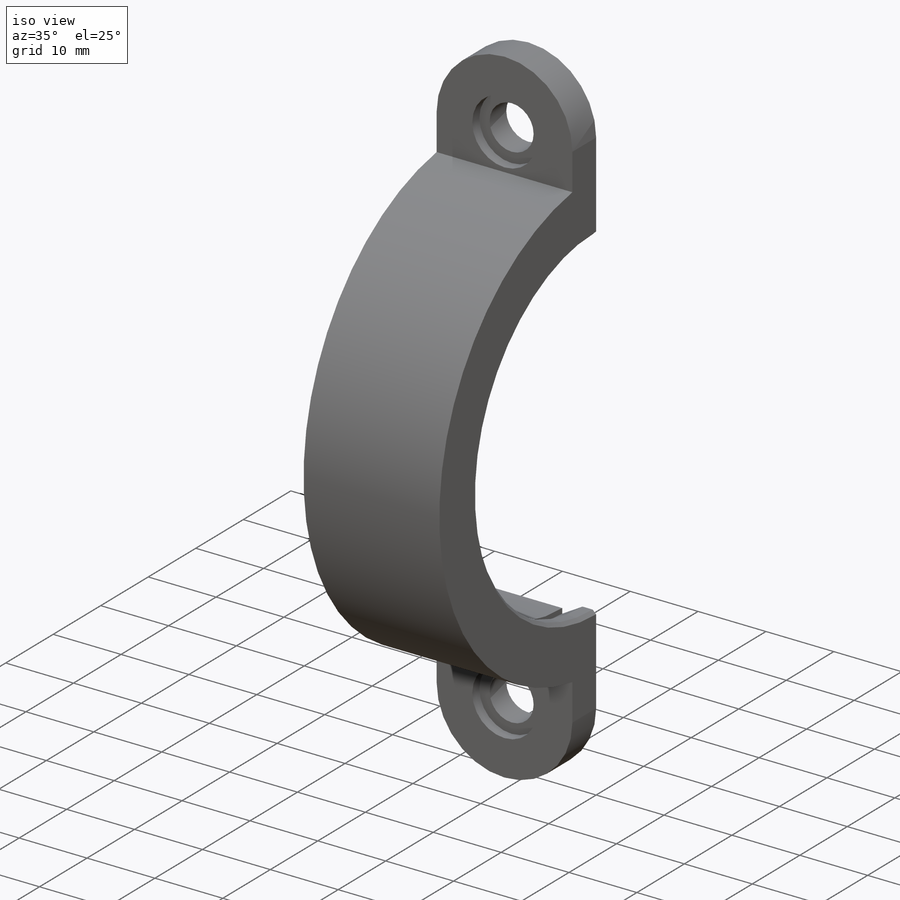
[diagram: iso view]
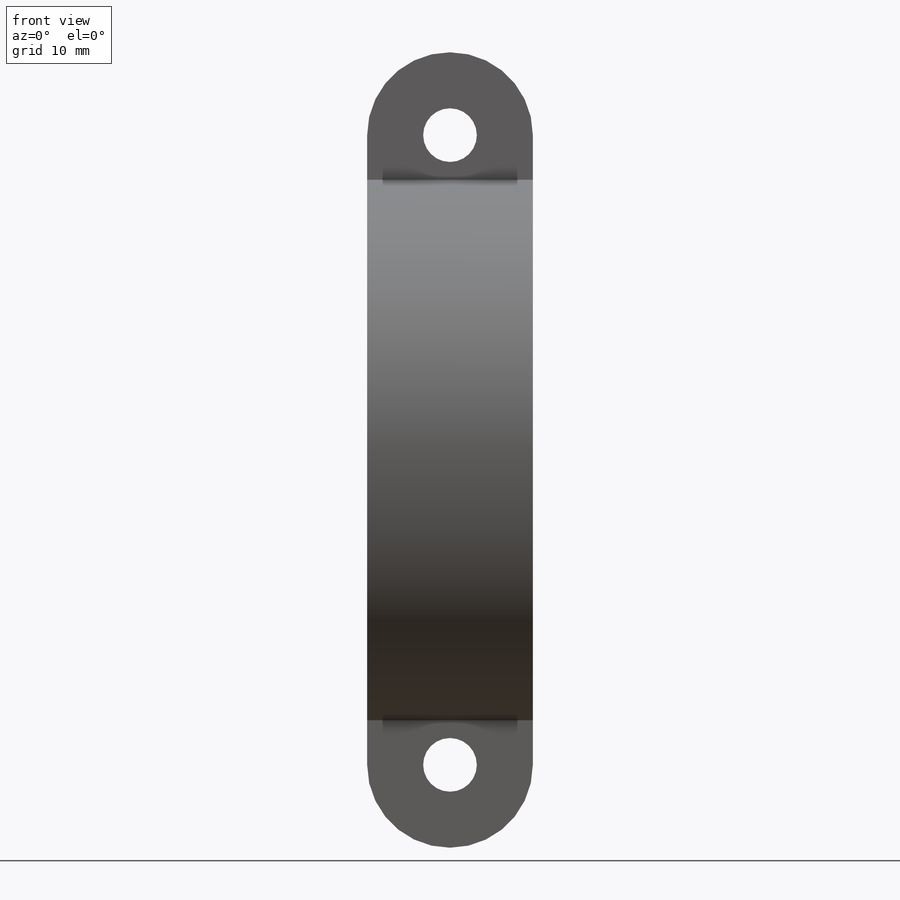
[diagram: front view]
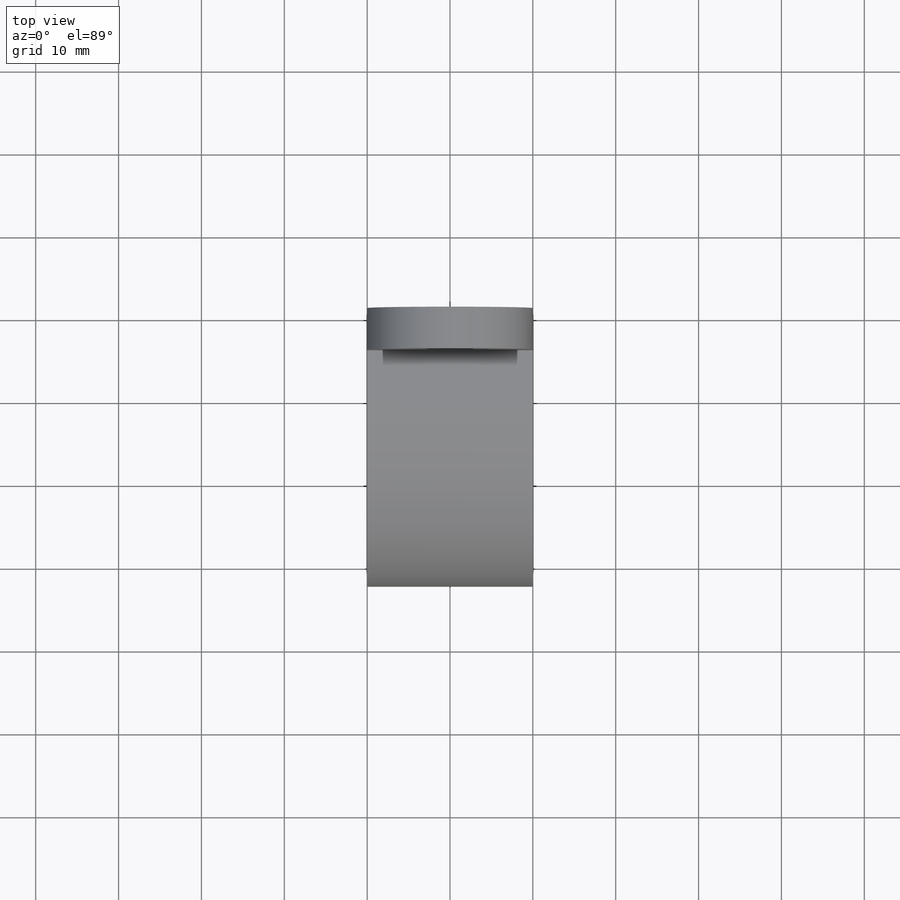
[diagram: top view]
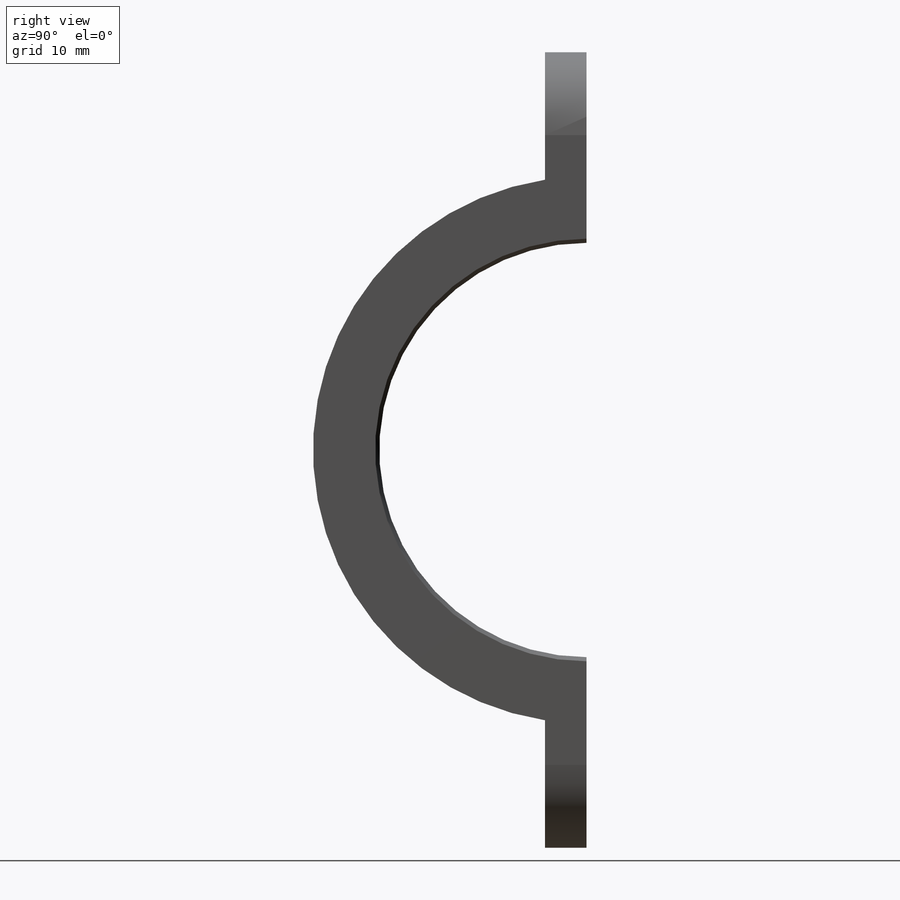
[diagram: right view]
SOLIDWORKS PART (.sldprt)
format: sldprt  version: not decoded by parser v0  size: 208,896 bytes
history: native  units: mm
features: sketch x7, extrude x2, cut_extrude x2, material x1, revolve x1, chamfer x1 (+16 scaffold rows collapsed)
feature tree (30):
  scaffold x16  (default folders/planes/origin — collapsed)
  material  "Material <not specified>"
  sketch  "Sketch1"  dims[D1=15.0mm D2=2.0mm D3=0.75mm D4=3.0mm D5=1.0mm D6=7.0mm D7=26.0mm D8=0.0mm]
  revolve  "Revolve1"  Angle=180deg
  sketch  "3DSketch1"
  sketch  "Sketch9"  dims[D1=5.0mm]
  extrude  "Boss-Extrude3"  Depth=5mm
  sketch  "3DSketch2"  dims[D1=90.0deg]
  sketch  "Sketch11"  dims[D1=5.0mm]
  extrude  "Boss-Extrude4"  Depth=5mm
  sketch  "Sketch17"  dims[D1=6.477mm D2=6.477mm]
  cut_extrude  "Cut-Extrude1"  [1 undecoded]
  sketch  "Sketch18"  dims[D1=9.5mm D2=9.5mm]
  cut_extrude  "Cut-Extrude2"  Depth=1.5mm
  chamfer  "Chamfer1"  Distance=0.5mm Angle=45deg
decode coverage: 11 of 13 modeling features carry decoded parameters
note: 1 parameter value undecoded
note: suppression state not decoded; provenance and decode notes live in map.json
